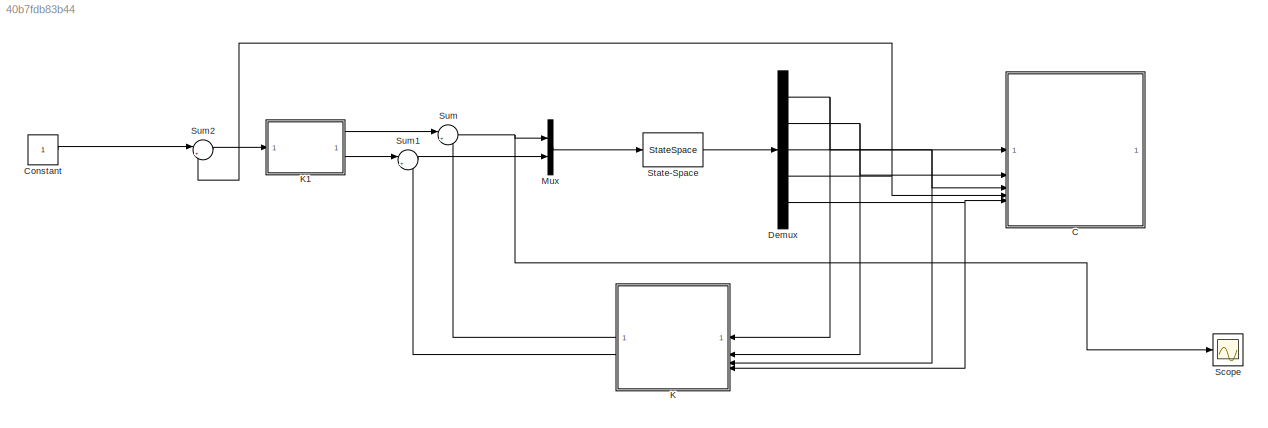
MODEL slx_40b7fdb83b44
KIND model
CONFIG AbsTol = 1e-6
CONFIG EnableMultiTasking = off
CONFIG FixedStep = auto
CONFIG MaxStep = 0.001
CONFIG MinStep = auto
CONFIG RelTol = 1e-5
CONFIG SampleTimeConstraint = Unconstrained
CONFIG SolverName = ode45
CONFIG StartTime = 0.0
CONFIG StopTime = 10
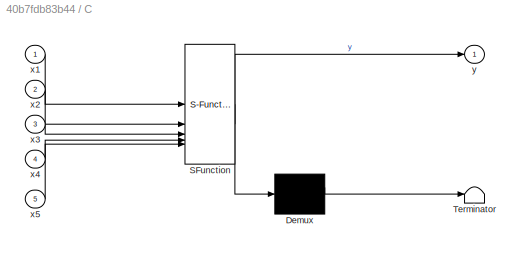
BLOCK [SubSystem] C
  ErrorFcn = Stateflow.Translate.translate
  PermitHierarchicalResolution = ExplicitOnly
  SFBlockType = MATLAB Function
  TreatAsAtomicUnit = on
BLOCK [Demux] C/ Demux 
  Outputs = 1
BLOCK [S-Function] C/ SFunction 
  EnableBusSupport = off
  FunctionName = sf_sfun
  PortCounts = [5 2]
  SFcnIsStateOwnerBlock = off
  SFunctionDeploymentMode = off
  Tag = Stateflow S-Function 1
BLOCK [Terminator] C/ Terminator 
BLOCK [Inport] C/x1
BLOCK [Inport] C/x2
  Port = 2
BLOCK [Inport] C/x3
  Port = 3
BLOCK [Inport] C/x4
  Port = 4
BLOCK [Inport] C/x5
  Port = 5
BLOCK [Outport] C/y
BLOCK [Constant] Constant
BLOCK [Demux] Demux
  Outputs = 5
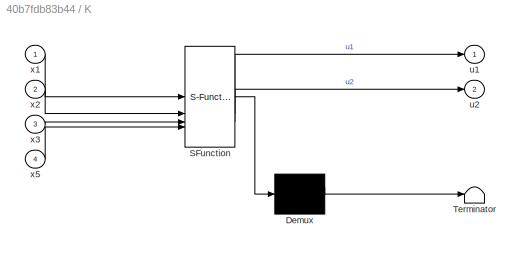
BLOCK [SubSystem] K
  ErrorFcn = Stateflow.Translate.translate
  PermitHierarchicalResolution = ExplicitOnly
  SFBlockType = MATLAB Function
  TreatAsAtomicUnit = on
BLOCK [Demux] K/ Demux 
  Outputs = 1
BLOCK [S-Function] K/ SFunction 
  EnableBusSupport = off
  FunctionName = sf_sfun
  PortCounts = [4 3]
  SFcnIsStateOwnerBlock = off
  SFunctionDeploymentMode = off
  Tag = Stateflow S-Function 2
BLOCK [Terminator] K/ Terminator 
BLOCK [Outport] K/u1
BLOCK [Outport] K/u2
  Port = 2
BLOCK [Inport] K/x1
BLOCK [Inport] K/x2
  Port = 2
BLOCK [Inport] K/x3
  Port = 3
BLOCK [Inport] K/x5
  Port = 4
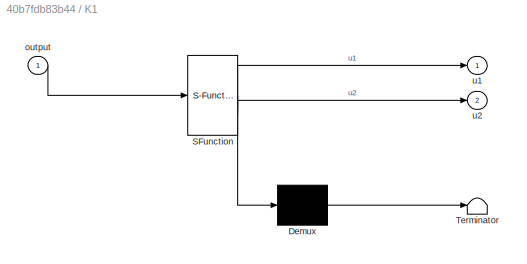
BLOCK [SubSystem] K1
  ErrorFcn = Stateflow.Translate.translate
  PermitHierarchicalResolution = ExplicitOnly
  SFBlockType = MATLAB Function
  TreatAsAtomicUnit = on
BLOCK [Demux] K1/ Demux 
  Outputs = 1
BLOCK [S-Function] K1/ SFunction 
  EnableBusSupport = off
  FunctionName = sf_sfun
  PortCounts = [1 3]
  SFcnIsStateOwnerBlock = off
  SFunctionDeploymentMode = off
  Tag = Stateflow S-Function 3
BLOCK [Terminator] K1/ Terminator 
BLOCK [Inport] K1/output
BLOCK [Outport] K1/u1
BLOCK [Outport] K1/u2
  Port = 2
BLOCK [Mux] Mux
  DisplayOption = bar
  Inputs = 2
BLOCK [Scope] Scope
  ActiveDisplayYMaximum = 1.27397
  ActiveDisplayYMinimum = -1.25266
  Floating = off
  GraphicalSettings = {"GraphicalSettings":{"LegacySettings":true,"Style":{"Style":{"AxesColor":"[0 0 0]","ChannelNames":[""],"ColorOrder":"[1 0.909803921568627 0.392156862745098;0.149019607843137 0.549019607843137 0.866666666666667;0.96078431372549 0.466666666666667 0.16078431372549;0.286274509803922 0.858823529411765 0.250980392156863;0.752941176470588 0.36078431372549 0.984313725490196;0.423529411764706 0.9568627450...<+546ch>
  MultipleDisplayCache = [{"MaxYLimMag":1.27397,"MaxYLimReal":1.27397,"MinYLimMag":0,"MinYLimReal":-1.25266,"PlotAsMagnitudePhase":false,"ShowGrid":true,"ShowLegend":true,"Title":"%<SignalLabel>","YLabel":""}]
  NumInputPorts = 1
  ScopeFrameLocation = window
  ShowLegend = on
  WasSavedAsWebScope = on
  WindowPosition = [488.000000,222.000000,560.000000,420.000000,]
BLOCK [StateSpace] State-Space
  A = A
  B = B
  C = C
  D = D
  InitialCondition = x0
BLOCK [Sum] Sum
  Inputs = |+-
BLOCK [Sum] Sum1
  Inputs = |+-
BLOCK [Sum] Sum2
  Inputs = |+-
LINE Constant:1 -> Sum2:1
NET Demux:1 -> C:1, K:1
NET Demux:2 -> C:2, K:2
NET Demux:3 -> C:3, K:3
NET Demux:4 -> C:4, Sum2:2
NET Demux:5 -> C:5, K:4
LINE K1:1 -> Sum:1
LINE K1:2 -> Sum1:1
LINE K:1 -> Sum:2
LINE K:2 -> Sum1:2
LINE Mux:1 -> State-Space:1
LINE State-Space:1 -> Demux:1
LINE Sum1:1 -> Mux:2
LINE Sum2:1 -> K1:1
NET Sum:1 -> Mux:1, Scope:1
note: NET lines group one-source signal fan-out (src -> all destinations, sorted); 1:1 wires keep LINE
CHART C states=1 transitions=1
  STATE_LABEL 'eML_blk_kernel()'
  STATE_LABEL 'SCRIPT:\nfunction y = fcn(x1,x2,x3,x4,x5)\nX = [x1;x2;x3;x4;x5];\ntilt_angle = X(1);\nheading_angle=X(4);\ny = [tilt_angle;heading_angle];\n'
CHART K states=1 transitions=1
  STATE_LABEL 'eML_blk_kernel()'
  STATE_LABEL 'SCRIPT:\nfunction [u1, u2] = fcn(x1, x2, x3, x5)\n\n    X = [x1; x2; x3; x5];  \n    K = [-153.4625 -16.8037  0.7071  1.7307;\n         -153.4625 -16.8037  0.7071 -1.7307]; \n\n    U = K * X; \n\n    u1 = U(1);  \n    u2 = U(2); \nend'
CHART K1 states=1 transitions=1
  STATE_LABEL 'eML_blk_kernel()'
  STATE_LABEL 'SCRIPT:\nfunction [u1, u2] = fcn(output)\n              \n\n    K = [2.2361; -2.2361];         \n\n    U = K * output;               \n\n    u1 = U(1);                      \n    u2 = U(2);                      \nend'
CHART  states=0 transitions=0
CHART  states=0 transitions=0
CHART  states=0 transitions=0
